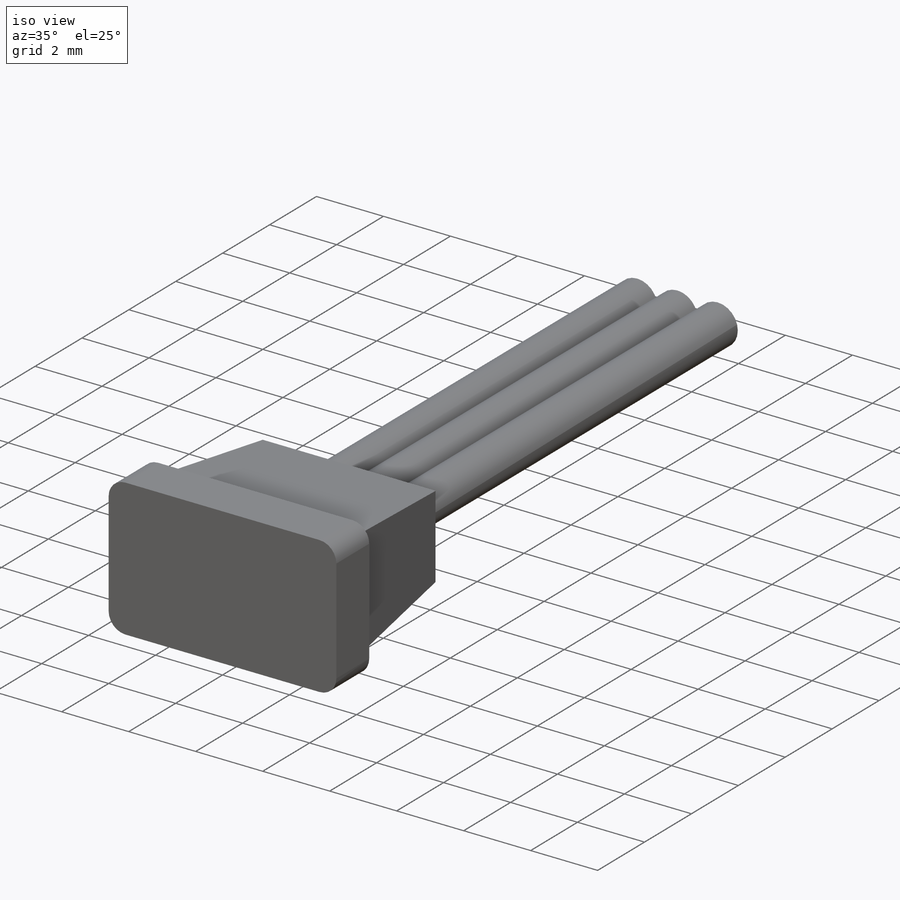
[diagram: iso view]
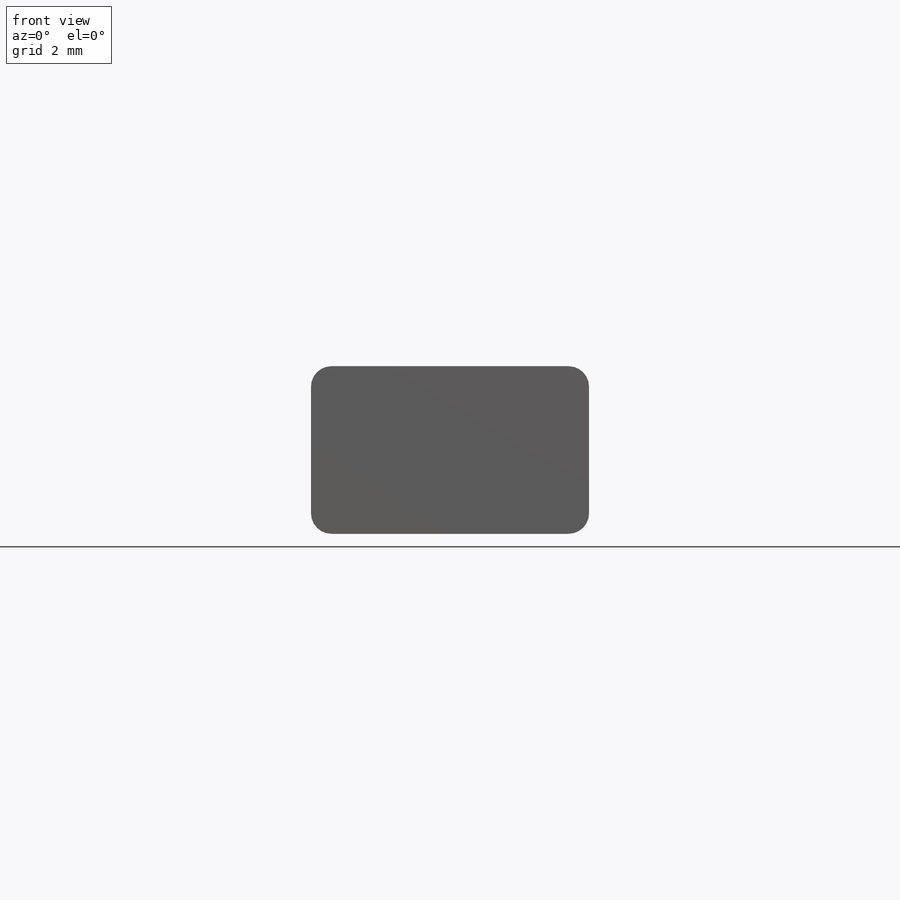
[diagram: front view]
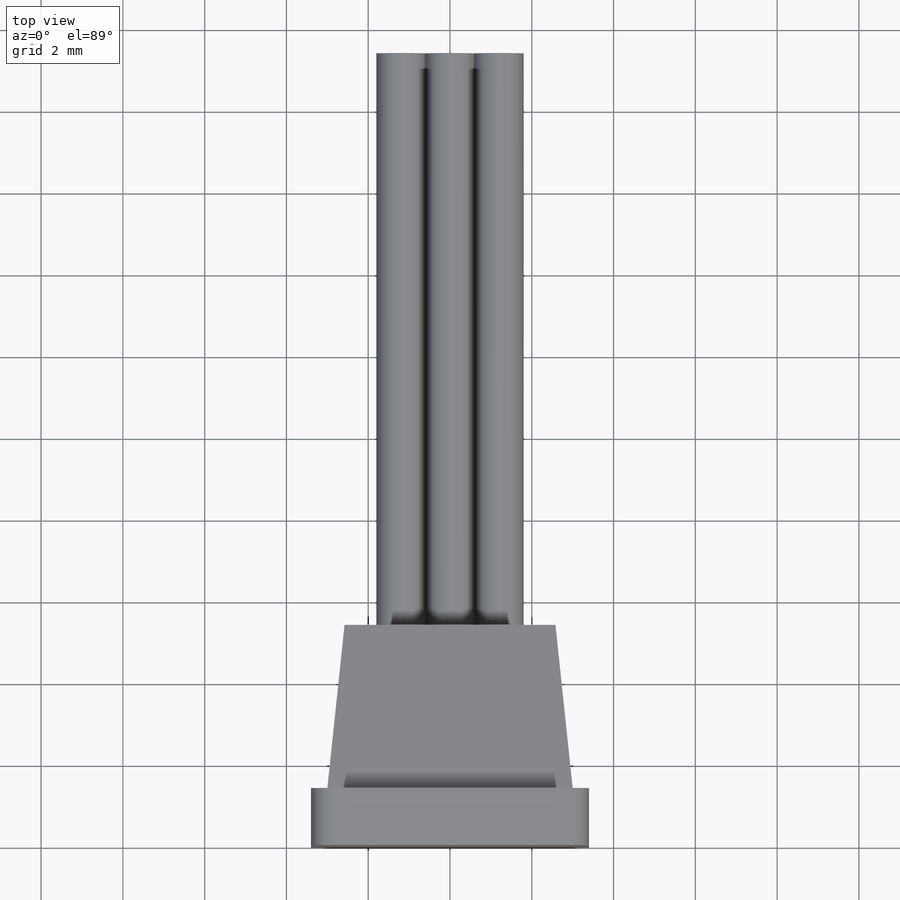
[diagram: top view]
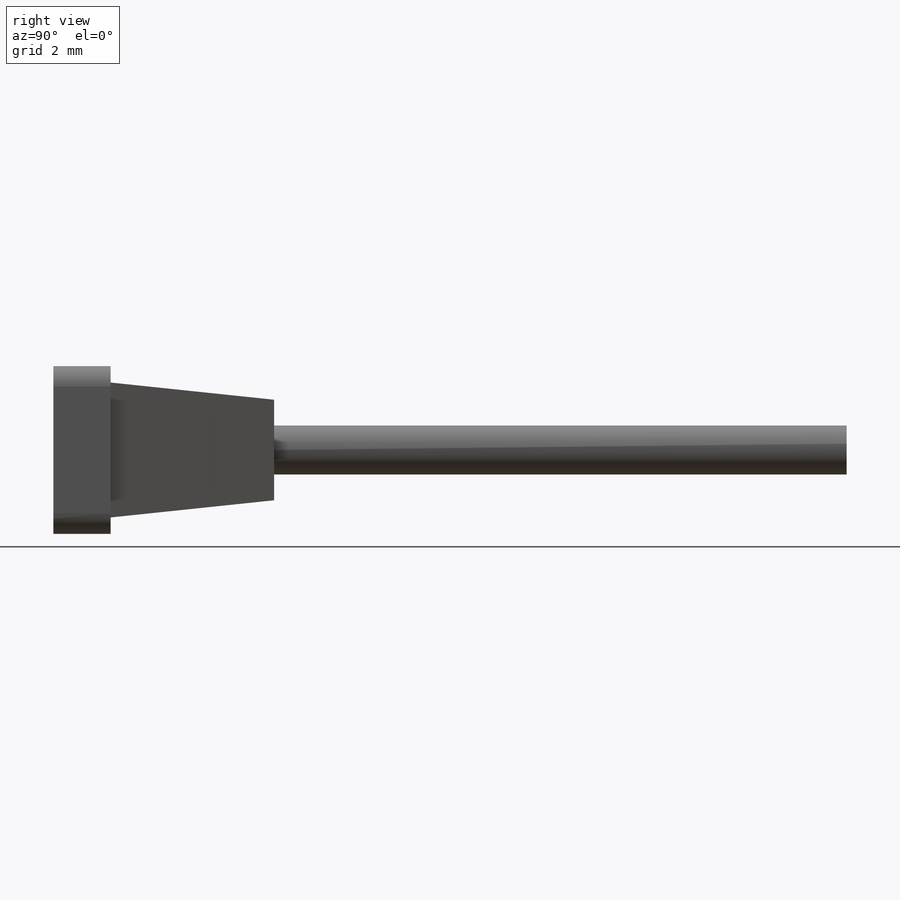
[diagram: right view]
SOLIDWORKS PART (.sldprt)
format: sldprt  version: not decoded by parser v0  size: 226,304 bytes
history: native  units: mm
features: sketch x5, extrude x5, material x1, fillet x1 (+14 scaffold rows collapsed; 1 parser-record rows omitted)
feature tree (27):
  scaffold x14  (default folders/planes/origin — collapsed)
  material  "Material <not specified>"
  sketch  "Sketch1"  dims[D1=6.8mm D2=4.1mm]
  extrude  "Boss-Extrude1"  Depth=1.4mm
  sketch  "Sketch2"  dims[c1.D1=0.4mm c1.D2=0.4mm c2.D1=0.4mm]
  extrude  "Boss-Extrude2"  Depth=4mm
  fillet  "Fillet1"  Radius=0.5mm
  parser-record x1  (decoder bookkeeping rows leaked as tree rows — omitted from the tree; the rows remain in map.json)
  sketch  "Sketch3"  dims[D1=1.2mm]
  extrude  "POSITIVE"  Depth=14mm
  sketch  "Sketch4"
  extrude  "SIGNAL"  [1 undecoded]
  sketch  "Sketch5"
  extrude  "NEGATIVE"  [1 undecoded]
decode coverage: 7 of 11 modeling features carry decoded parameters
note: 2 parameter values undecoded
note: suppression state not decoded; provenance and decode notes live in map.json
